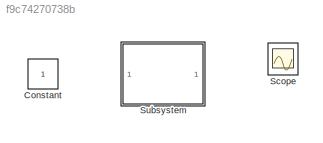
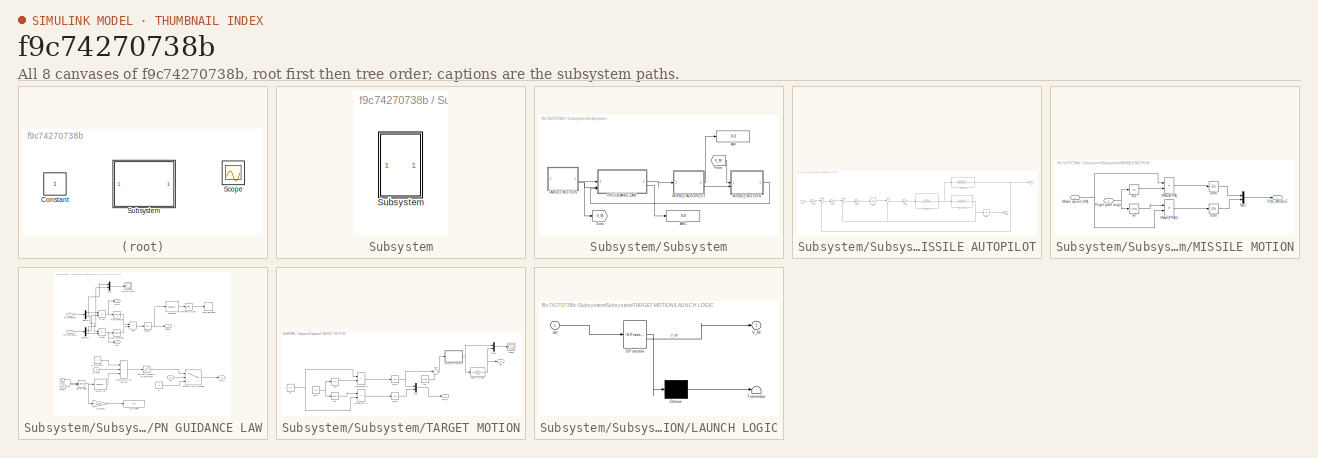
[diagram: thumbnail index - all 8 canvases of the model, root first then tree order]
MODEL slx_f9c74270738b
KIND model
CONFIG AbsTol = auto
CONFIG EnableMultiTasking = off
CONFIG FixedStep = 0.01
CONFIG MaxStep = auto
CONFIG MinStep = auto
CONFIG RelTol = 1e-3
CONFIG SampleTimeConstraint = Unconstrained
CONFIG SolverName = ode4
CONFIG StartTime = 0.0
CONFIG StopTime = 45
BLOCK [Constant] Constant
BLOCK [Scope] Scope
  Floating = off
  NumInputPorts = 1
  ScopeSpecificationString = Simulink.scopes.TimeScopeBlockCfg('CurrentConfiguration', extmgr.ConfigurationSet(extmgr.Configuration('Core','General UI',true),extmgr.Configuration('Core','Source UI',true),extmgr.Configuration('Sources','WiredSimulink',true),extmgr.Configuration('Visuals','Time Domain',true,'SerializedDisplays',{struct('MinYLimReal','-1.00000','MaxYLimReal','1.00000','YLabelReal','','MinYLimMag','0.00000','MaxY...<+1396ch>
BLOCK [SubSystem] Subsystem
BLOCK [SubSystem] Subsystem/Subsystem
BLOCK [Display] Subsystem/Subsystem/AM
  Decimation = 1
  Format = bank
BLOCK [Display] Subsystem/Subsystem/AM1
  Decimation = 1
  Format = bank
BLOCK [From] Subsystem/Subsystem/From
  GotoTag = V_M
BLOCK [Goto] Subsystem/Subsystem/Goto
  GotoTag = V_M
BLOCK [SubSystem] Subsystem/Subsystem/MISSILE AUTOPILOT
BLOCK [Outport] Subsystem/Subsystem/MISSILE AUTOPILOT/AM
BLOCK [Inport] Subsystem/Subsystem/MISSILE AUTOPILOT/AM_c
BLOCK [Gain] Subsystem/Subsystem/MISSILE AUTOPILOT/Gain
  Gain = Kr
BLOCK [Gain] Subsystem/Subsystem/MISSILE AUTOPILOT/Gain1
  Gain = Ki
BLOCK [Gain] Subsystem/Subsystem/MISSILE AUTOPILOT/Gain2
  Gain = Ka
BLOCK [Gain] Subsystem/Subsystem/MISSILE AUTOPILOT/Gain3
  Gain = Kdc
BLOCK [Integrator] Subsystem/Subsystem/MISSILE AUTOPILOT/Ki//S
BLOCK [Integrator] Subsystem/Subsystem/MISSILE AUTOPILOT/Ki//S1
  InitialCondition = l_MO
BLOCK [Sum] Subsystem/Subsystem/MISSILE AUTOPILOT/Sum
  Inputs = |+-
BLOCK [Sum] Subsystem/Subsystem/MISSILE AUTOPILOT/Sum1
  Inputs = |+-
BLOCK [Sum] Subsystem/Subsystem/MISSILE AUTOPILOT/Sum2
  Inputs = |+-
BLOCK [Outport] Subsystem/Subsystem/MISSILE AUTOPILOT/Theta
  Port = 2
BLOCK [TransferFcn] Subsystem/Subsystem/MISSILE AUTOPILOT/Transfer Fcn
  Denominator = [1 1.12 87.176]
  Numerator = [0.2038 0 -239.76]
BLOCK [TransferFcn] Subsystem/Subsystem/MISSILE AUTOPILOT/Transfer Fcn1
  Denominator = [1 210 22500]
  Numerator = [22500]
BLOCK [TransferFcn] Subsystem/Subsystem/MISSILE AUTOPILOT/Transfer Fcn2
  Denominator = [1 1.12 87.176]
  Numerator = [-131 -131]
BLOCK [SubSystem] Subsystem/Subsystem/MISSILE MOTION
BLOCK [Inport] Subsystem/Subsystem/MISSILE MOTION/Flight path angle
  Port = 2
BLOCK [Inport] Subsystem/Subsystem/MISSILE MOTION/Missile speed (VM)
BLOCK [Mux] Subsystem/Subsystem/MISSILE MOTION/Mux
  DisplayOption = bar
  Inputs = 2
BLOCK [Outport] Subsystem/Subsystem/MISSILE MOTION/POS_MISSILE
BLOCK [Product] Subsystem/Subsystem/MISSILE MOTION/VMcos(FPA)
BLOCK [Product] Subsystem/Subsystem/MISSILE MOTION/VMsin(FPA)1
BLOCK [Trigonometry] Subsystem/Subsystem/MISSILE MOTION/cos
  Operator = cos
BLOCK [Integrator] Subsystem/Subsystem/MISSILE MOTION/dx//dt
  InitialCondition = X_MO
BLOCK [Integrator] Subsystem/Subsystem/MISSILE MOTION/dz//dt
  InitialCondition = Z_MO
BLOCK [Trigonometry] Subsystem/Subsystem/MISSILE MOTION/sin
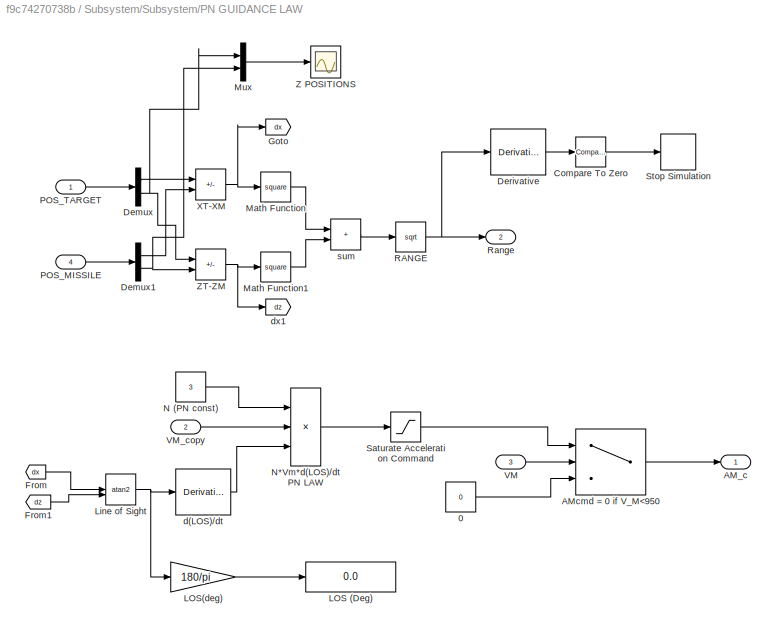
BLOCK [SubSystem] Subsystem/Subsystem/PN GUIDANCE LAW
BLOCK [Constant] Subsystem/Subsystem/PN GUIDANCE LAW/0
  Value = 0
BLOCK [Outport] Subsystem/Subsystem/PN GUIDANCE LAW/AM_c
BLOCK [Switch] Subsystem/Subsystem/PN GUIDANCE LAW/AMcmd = 0 if V_M<950
  Criteria = u2 > Threshold
  InputSameDT = off
  SaturateOnIntegerOverflow = off
  Threshold = 950
BLOCK [Reference] Subsystem/Subsystem/PN GUIDANCE LAW/Compare To Zero  REF=simulink/Logic and Bit
Operations/Compare
To Zero
  SourceBlock = simulink/Logic and Bit\nOperations/Compare\nTo Zero
  SourceType = Compare To Zero
BLOCK [Demux] Subsystem/Subsystem/PN GUIDANCE LAW/Demux
  Outputs = 2
BLOCK [Demux] Subsystem/Subsystem/PN GUIDANCE LAW/Demux1
  Outputs = 2
BLOCK [Derivative] Subsystem/Subsystem/PN GUIDANCE LAW/Derivative
BLOCK [From] Subsystem/Subsystem/PN GUIDANCE LAW/From
  GotoTag = dx
BLOCK [From] Subsystem/Subsystem/PN GUIDANCE LAW/From1
  GotoTag = dz
BLOCK [Goto] Subsystem/Subsystem/PN GUIDANCE LAW/Goto
  GotoTag = dx
BLOCK [Display] Subsystem/Subsystem/PN GUIDANCE LAW/LOS (Deg)
  Decimation = 1
BLOCK [Gain] Subsystem/Subsystem/PN GUIDANCE LAW/LOS(deg)
  Gain = 180/pi
BLOCK [Trigonometry] Subsystem/Subsystem/PN GUIDANCE LAW/Line of Sight
  Operator = atan2
BLOCK [Math] Subsystem/Subsystem/PN GUIDANCE LAW/Math Function
  Operator = square
BLOCK [Math] Subsystem/Subsystem/PN GUIDANCE LAW/Math Function1
  Operator = square
BLOCK [Mux] Subsystem/Subsystem/PN GUIDANCE LAW/Mux
  DisplayOption = bar
  Inputs = 2
BLOCK [Constant] Subsystem/Subsystem/PN GUIDANCE LAW/N (PN const)
  Value = 3
BLOCK [Product] Subsystem/Subsystem/PN GUIDANCE LAW/N*Vm*d(LOS)//dt PN LAW
  Inputs = 3
BLOCK [Inport] Subsystem/Subsystem/PN GUIDANCE LAW/POS_MISSILE
  Port = 4
BLOCK [Inport] Subsystem/Subsystem/PN GUIDANCE LAW/POS_TARGET
BLOCK [Sqrt] Subsystem/Subsystem/PN GUIDANCE LAW/RANGE
BLOCK [Outport] Subsystem/Subsystem/PN GUIDANCE LAW/Range
  Port = 2
BLOCK [Saturate] Subsystem/Subsystem/PN GUIDANCE LAW/Saturate Acceleration Command
  LowerLimit = -0.10
  UpperLimit = 0
BLOCK [Stop] Subsystem/Subsystem/PN GUIDANCE LAW/Stop Simulation
BLOCK [Inport] Subsystem/Subsystem/PN GUIDANCE LAW/VM
  Port = 3
BLOCK [Inport] Subsystem/Subsystem/PN GUIDANCE LAW/VM_copy
  Port = 2
BLOCK [Sum] Subsystem/Subsystem/PN GUIDANCE LAW/XT-XM
  IconShape = rectangular
  Inputs = +-
BLOCK [Scope] Subsystem/Subsystem/PN GUIDANCE LAW/Z POSITIONS
  Floating = off
  NumInputPorts = 1
  ScopeSpecificationString = Simulink.scopes.TimeScopeBlockCfg('CurrentConfiguration', extmgr.ConfigurationSet(extmgr.Configuration('Core','General UI',true),extmgr.Configuration('Core','Source UI',true),extmgr.Configuration('Sources','WiredSimulink',true,'DataLoggingVariableName','ScopeData2'),extmgr.Configuration('Visuals','Time Domain',true,'SerializedDisplays',{struct('MinYLimReal','-2500.00000','MaxYLimReal','22500.00000...<+1507ch>
BLOCK [Sum] Subsystem/Subsystem/PN GUIDANCE LAW/ZT-ZM
  IconShape = rectangular
  Inputs = +-
BLOCK [Derivative] Subsystem/Subsystem/PN GUIDANCE LAW/d(LOS)//dt
BLOCK [Goto] Subsystem/Subsystem/PN GUIDANCE LAW/dx1
  GotoTag = dz
BLOCK [Sum] Subsystem/Subsystem/PN GUIDANCE LAW/sum
  IconShape = rectangular
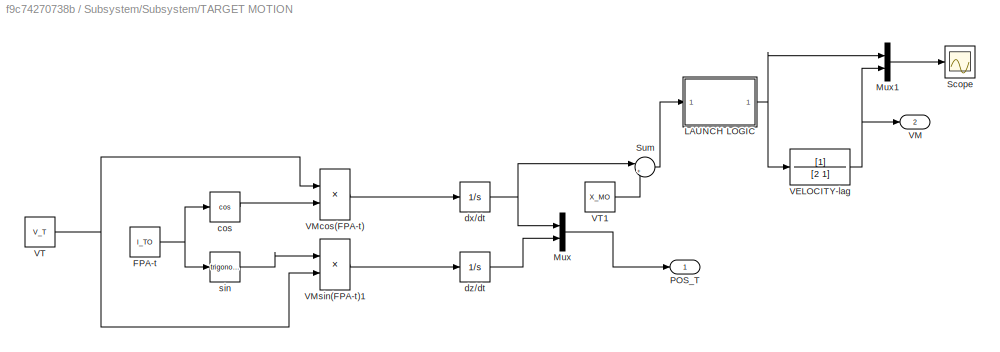
BLOCK [SubSystem] Subsystem/Subsystem/TARGET MOTION
BLOCK [Constant] Subsystem/Subsystem/TARGET MOTION/FPA-t
  Value = l_TO
BLOCK [SubSystem] Subsystem/Subsystem/TARGET MOTION/LAUNCH LOGIC
  ErrorFcn = Stateflow.Translate.translate
  LibrarySourceBlock = simulink/User-Defined\nFunctions/MATLAB Function
  PermitHierarchicalResolution = ExplicitOnly
  SFBlockType = MATLAB Function
  TreatAsAtomicUnit = on
BLOCK [Demux] Subsystem/Subsystem/TARGET MOTION/LAUNCH LOGIC/ Demux 
  Outputs = 1
BLOCK [S-Function] Subsystem/Subsystem/TARGET MOTION/LAUNCH LOGIC/ SFunction 
  EnableBusSupport = on
  FunctionName = sf_sfun
  PortCounts = [1 2]
  SFcnIsStateOwnerBlock = off
  SFunctionDeploymentMode = off
  Tag = Stateflow S-Function 2
BLOCK [Terminator] Subsystem/Subsystem/TARGET MOTION/LAUNCH LOGIC/ Terminator 
BLOCK [Outport] Subsystem/Subsystem/TARGET MOTION/LAUNCH LOGIC/V_M
BLOCK [Inport] Subsystem/Subsystem/TARGET MOTION/LAUNCH LOGIC/del
BLOCK [Mux] Subsystem/Subsystem/TARGET MOTION/Mux
  DisplayOption = bar
  Inputs = 2
BLOCK [Mux] Subsystem/Subsystem/TARGET MOTION/Mux1
  DisplayOption = bar
  Inputs = 2
BLOCK [Outport] Subsystem/Subsystem/TARGET MOTION/POS_T
BLOCK [Scope] Subsystem/Subsystem/TARGET MOTION/Scope
  Floating = off
  NumInputPorts = 1
  ScopeSpecificationString = Simulink.scopes.TimeScopeBlockCfg('CurrentConfiguration', extmgr.ConfigurationSet(extmgr.Configuration('Core','General UI',true),extmgr.Configuration('Core','Source UI',true),extmgr.Configuration('Sources','WiredSimulink',true,'DataLoggingVariableName','ScopeData1'),extmgr.Configuration('Visuals','Time Domain',true,'SerializedDisplays',{struct('MinYLimReal','-127.625','MaxYLimReal','1148.625','YLa...<+1419ch>
BLOCK [Sum] Subsystem/Subsystem/TARGET MOTION/Sum
  Inputs = |+-
BLOCK [TransferFcn] Subsystem/Subsystem/TARGET MOTION/VELOCITY-lag
  Denominator = [2 1]
BLOCK [Outport] Subsystem/Subsystem/TARGET MOTION/VM
  Port = 2
BLOCK [Product] Subsystem/Subsystem/TARGET MOTION/VMcos(FPA-t)
BLOCK [Product] Subsystem/Subsystem/TARGET MOTION/VMsin(FPA-t)1
BLOCK [Constant] Subsystem/Subsystem/TARGET MOTION/VT
  Value = V_T
BLOCK [Constant] Subsystem/Subsystem/TARGET MOTION/VT1
  Value = X_MO
BLOCK [Trigonometry] Subsystem/Subsystem/TARGET MOTION/cos
  Operator = cos
BLOCK [Integrator] Subsystem/Subsystem/TARGET MOTION/dx//dt
  InitialCondition = X_TO
BLOCK [Integrator] Subsystem/Subsystem/TARGET MOTION/dz//dt
  InitialCondition = Z_TO
BLOCK [Trigonometry] Subsystem/Subsystem/TARGET MOTION/sin
LINE Subsystem/Subsystem/From:1 -> Subsystem/Subsystem/MISSILE MOTION:1
LINE Subsystem/Subsystem/MISSILE AUTOPILOT/AM_c:1 -> Subsystem/Subsystem/MISSILE AUTOPILOT/Gain3:1
LINE Subsystem/Subsystem/MISSILE AUTOPILOT/Gain1:1 -> Subsystem/Subsystem/MISSILE AUTOPILOT/Ki//S:1
LINE Subsystem/Subsystem/MISSILE AUTOPILOT/Gain2:1 -> Subsystem/Subsystem/MISSILE AUTOPILOT/Sum1:1
LINE Subsystem/Subsystem/MISSILE AUTOPILOT/Gain3:1 -> Subsystem/Subsystem/MISSILE AUTOPILOT/Sum2:1
LINE Subsystem/Subsystem/MISSILE AUTOPILOT/Gain:1 -> Subsystem/Subsystem/MISSILE AUTOPILOT/Transfer Fcn1:1
LINE Subsystem/Subsystem/MISSILE AUTOPILOT/Ki//S1:1 -> Subsystem/Subsystem/MISSILE AUTOPILOT/Theta:1
LINE Subsystem/Subsystem/MISSILE AUTOPILOT/Ki//S:1 -> Subsystem/Subsystem/MISSILE AUTOPILOT/Sum:1
LINE Subsystem/Subsystem/MISSILE AUTOPILOT/Sum1:1 -> Subsystem/Subsystem/MISSILE AUTOPILOT/Gain1:1
LINE Subsystem/Subsystem/MISSILE AUTOPILOT/Sum2:1 -> Subsystem/Subsystem/MISSILE AUTOPILOT/Gain2:1
LINE Subsystem/Subsystem/MISSILE AUTOPILOT/Sum:1 -> Subsystem/Subsystem/MISSILE AUTOPILOT/Gain:1
NET Subsystem/Subsystem/MISSILE AUTOPILOT/Transfer Fcn1:1 -> Subsystem/Subsystem/MISSILE AUTOPILOT/Transfer Fcn2:1, Subsystem/Subsystem/MISSILE AUTOPILOT/Transfer Fcn:1
NET Subsystem/Subsystem/MISSILE AUTOPILOT/Transfer Fcn2:1 -> Subsystem/Subsystem/MISSILE AUTOPILOT/Ki//S1:1, Subsystem/Subsystem/MISSILE AUTOPILOT/Sum1:2, Subsystem/Subsystem/MISSILE AUTOPILOT/Sum:2
NET Subsystem/Subsystem/MISSILE AUTOPILOT/Transfer Fcn:1 -> Subsystem/Subsystem/MISSILE AUTOPILOT/AM:1, Subsystem/Subsystem/MISSILE AUTOPILOT/Sum2:2
LINE Subsystem/Subsystem/MISSILE AUTOPILOT:1 -> Subsystem/Subsystem/AM:1
LINE Subsystem/Subsystem/MISSILE AUTOPILOT:2 -> Subsystem/Subsystem/MISSILE MOTION:2
NET Subsystem/Subsystem/MISSILE MOTION/Flight path angle:1 -> Subsystem/Subsystem/MISSILE MOTION/cos:1, Subsystem/Subsystem/MISSILE MOTION/sin:1
NET Subsystem/Subsystem/MISSILE MOTION/Missile speed (VM):1 -> Subsystem/Subsystem/MISSILE MOTION/VMcos(FPA):1, Subsystem/Subsystem/MISSILE MOTION/VMsin(FPA)1:2
LINE Subsystem/Subsystem/MISSILE MOTION/Mux:1 -> Subsystem/Subsystem/MISSILE MOTION/POS_MISSILE:1
LINE Subsystem/Subsystem/MISSILE MOTION/VMcos(FPA):1 -> Subsystem/Subsystem/MISSILE MOTION/dx//dt:1
LINE Subsystem/Subsystem/MISSILE MOTION/VMsin(FPA)1:1 -> Subsystem/Subsystem/MISSILE MOTION/dz//dt:1
LINE Subsystem/Subsystem/MISSILE MOTION/cos:1 -> Subsystem/Subsystem/MISSILE MOTION/VMcos(FPA):2
LINE Subsystem/Subsystem/MISSILE MOTION/dx//dt:1 -> Subsystem/Subsystem/MISSILE MOTION/Mux:1
LINE Subsystem/Subsystem/MISSILE MOTION/dz//dt:1 -> Subsystem/Subsystem/MISSILE MOTION/Mux:2
LINE Subsystem/Subsystem/MISSILE MOTION/sin:1 -> Subsystem/Subsystem/MISSILE MOTION/VMsin(FPA)1:1
LINE Subsystem/Subsystem/MISSILE MOTION:1 -> Subsystem/Subsystem/PN GUIDANCE LAW:4
LINE Subsystem/Subsystem/PN GUIDANCE LAW/0:1 -> Subsystem/Subsystem/PN GUIDANCE LAW/AMcmd = 0 if V_M<950:3
LINE Subsystem/Subsystem/PN GUIDANCE LAW/AMcmd = 0 if V_M<950:1 -> Subsystem/Subsystem/PN GUIDANCE LAW/AM_c:1
LINE Subsystem/Subsystem/PN GUIDANCE LAW/Compare To Zero:1 -> Subsystem/Subsystem/PN GUIDANCE LAW/Stop Simulation:1
LINE Subsystem/Subsystem/PN GUIDANCE LAW/Demux1:1 -> Subsystem/Subsystem/PN GUIDANCE LAW/XT-XM:2
NET Subsystem/Subsystem/PN GUIDANCE LAW/Demux1:2 -> Subsystem/Subsystem/PN GUIDANCE LAW/Mux:2, Subsystem/Subsystem/PN GUIDANCE LAW/ZT-ZM:2
LINE Subsystem/Subsystem/PN GUIDANCE LAW/Demux:1 -> Subsystem/Subsystem/PN GUIDANCE LAW/XT-XM:1
NET Subsystem/Subsystem/PN GUIDANCE LAW/Demux:2 -> Subsystem/Subsystem/PN GUIDANCE LAW/Mux:1, Subsystem/Subsystem/PN GUIDANCE LAW/ZT-ZM:1
LINE Subsystem/Subsystem/PN GUIDANCE LAW/Derivative:1 -> Subsystem/Subsystem/PN GUIDANCE LAW/Compare To Zero:1
LINE Subsystem/Subsystem/PN GUIDANCE LAW/From1:1 -> Subsystem/Subsystem/PN GUIDANCE LAW/Line of Sight:2
LINE Subsystem/Subsystem/PN GUIDANCE LAW/From:1 -> Subsystem/Subsystem/PN GUIDANCE LAW/Line of Sight:1
LINE Subsystem/Subsystem/PN GUIDANCE LAW/LOS(deg):1 -> Subsystem/Subsystem/PN GUIDANCE LAW/LOS (Deg):1
NET Subsystem/Subsystem/PN GUIDANCE LAW/Line of Sight:1 -> Subsystem/Subsystem/PN GUIDANCE LAW/LOS(deg):1, Subsystem/Subsystem/PN GUIDANCE LAW/d(LOS)//dt:1
LINE Subsystem/Subsystem/PN GUIDANCE LAW/Math Function1:1 -> Subsystem/Subsystem/PN GUIDANCE LAW/sum:2
LINE Subsystem/Subsystem/PN GUIDANCE LAW/Math Function:1 -> Subsystem/Subsystem/PN GUIDANCE LAW/sum:1
LINE Subsystem/Subsystem/PN GUIDANCE LAW/Mux:1 -> Subsystem/Subsystem/PN GUIDANCE LAW/Z POSITIONS:1
LINE Subsystem/Subsystem/PN GUIDANCE LAW/N (PN const):1 -> Subsystem/Subsystem/PN GUIDANCE LAW/N*Vm*d(LOS)//dt PN LAW:1
LINE Subsystem/Subsystem/PN GUIDANCE LAW/N*Vm*d(LOS)//dt PN LAW:1 -> Subsystem/Subsystem/PN GUIDANCE LAW/Saturate Acceleration Command:1
LINE Subsystem/Subsystem/PN GUIDANCE LAW/POS_MISSILE:1 -> Subsystem/Subsystem/PN GUIDANCE LAW/Demux1:1
LINE Subsystem/Subsystem/PN GUIDANCE LAW/POS_TARGET:1 -> Subsystem/Subsystem/PN GUIDANCE LAW/Demux:1
NET Subsystem/Subsystem/PN GUIDANCE LAW/RANGE:1 -> Subsystem/Subsystem/PN GUIDANCE LAW/Derivative:1, Subsystem/Subsystem/PN GUIDANCE LAW/Range:1
LINE Subsystem/Subsystem/PN GUIDANCE LAW/Saturate Acceleration Command:1 -> Subsystem/Subsystem/PN GUIDANCE LAW/AMcmd = 0 if V_M<950:1
LINE Subsystem/Subsystem/PN GUIDANCE LAW/VM:1 -> Subsystem/Subsystem/PN GUIDANCE LAW/AMcmd = 0 if V_M<950:2
LINE Subsystem/Subsystem/PN GUIDANCE LAW/VM_copy:1 -> Subsystem/Subsystem/PN GUIDANCE LAW/N*Vm*d(LOS)//dt PN LAW:2
NET Subsystem/Subsystem/PN GUIDANCE LAW/XT-XM:1 -> Subsystem/Subsystem/PN GUIDANCE LAW/Goto:1, Subsystem/Subsystem/PN GUIDANCE LAW/Math Function:1
NET Subsystem/Subsystem/PN GUIDANCE LAW/ZT-ZM:1 -> Subsystem/Subsystem/PN GUIDANCE LAW/Math Function1:1, Subsystem/Subsystem/PN GUIDANCE LAW/dx1:1
LINE Subsystem/Subsystem/PN GUIDANCE LAW/d(LOS)//dt:1 -> Subsystem/Subsystem/PN GUIDANCE LAW/N*Vm*d(LOS)//dt PN LAW:3
LINE Subsystem/Subsystem/PN GUIDANCE LAW/sum:1 -> Subsystem/Subsystem/PN GUIDANCE LAW/RANGE:1
LINE Subsystem/Subsystem/PN GUIDANCE LAW:1 -> Subsystem/Subsystem/MISSILE AUTOPILOT:1
LINE Subsystem/Subsystem/PN GUIDANCE LAW:2 -> Subsystem/Subsystem/AM1:1
NET Subsystem/Subsystem/TARGET MOTION/FPA-t:1 -> Subsystem/Subsystem/TARGET MOTION/cos:1, Subsystem/Subsystem/TARGET MOTION/sin:1
NET Subsystem/Subsystem/TARGET MOTION/LAUNCH LOGIC:1 -> Subsystem/Subsystem/TARGET MOTION/Mux1:1, Subsystem/Subsystem/TARGET MOTION/VELOCITY-lag:1
LINE Subsystem/Subsystem/TARGET MOTION/Mux1:1 -> Subsystem/Subsystem/TARGET MOTION/Scope:1
LINE Subsystem/Subsystem/TARGET MOTION/Mux:1 -> Subsystem/Subsystem/TARGET MOTION/POS_T:1
LINE Subsystem/Subsystem/TARGET MOTION/Sum:1 -> Subsystem/Subsystem/TARGET MOTION/LAUNCH LOGIC:1
NET Subsystem/Subsystem/TARGET MOTION/VELOCITY-lag:1 -> Subsystem/Subsystem/TARGET MOTION/Mux1:2, Subsystem/Subsystem/TARGET MOTION/VM:1
LINE Subsystem/Subsystem/TARGET MOTION/VMcos(FPA-t):1 -> Subsystem/Subsystem/TARGET MOTION/dx//dt:1
LINE Subsystem/Subsystem/TARGET MOTION/VMsin(FPA-t)1:1 -> Subsystem/Subsystem/TARGET MOTION/dz//dt:1
LINE Subsystem/Subsystem/TARGET MOTION/VT1:1 -> Subsystem/Subsystem/TARGET MOTION/Sum:2
NET Subsystem/Subsystem/TARGET MOTION/VT:1 -> Subsystem/Subsystem/TARGET MOTION/VMcos(FPA-t):1, Subsystem/Subsystem/TARGET MOTION/VMsin(FPA-t)1:2
LINE Subsystem/Subsystem/TARGET MOTION/cos:1 -> Subsystem/Subsystem/TARGET MOTION/VMcos(FPA-t):2
NET Subsystem/Subsystem/TARGET MOTION/dx//dt:1 -> Subsystem/Subsystem/TARGET MOTION/Mux:1, Subsystem/Subsystem/TARGET MOTION/Sum:1
LINE Subsystem/Subsystem/TARGET MOTION/dz//dt:1 -> Subsystem/Subsystem/TARGET MOTION/Mux:2
LINE Subsystem/Subsystem/TARGET MOTION/sin:1 -> Subsystem/Subsystem/TARGET MOTION/VMsin(FPA-t)1:1
LINE Subsystem/Subsystem/TARGET MOTION:1 -> Subsystem/Subsystem/PN GUIDANCE LAW:1
NET Subsystem/Subsystem/TARGET MOTION:2 -> Subsystem/Subsystem/Goto:1, Subsystem/Subsystem/PN GUIDANCE LAW:3
note: NET lines group one-source signal fan-out (src -> all destinations, sorted); 1:1 wires keep LINE
CHART Subsystem/Subsystem/TARGET MOTION/LAUNCH LOGIC states=1 transitions=1
  STATE_LABEL 'eML_blk_kernel()'
  STATE_LABEL 'SCRIPT:\nfunction V_M = fcn(del)\n%#codegen\npersistent f\npersistent Vel\n\nif isempty(f) \n    f = 0;\nend\nif isempty(Vel)\n    Vel = 0;\nend\nif f == 0 && del > -200\n    f = 1;\n    Vel = 1021; %missile speed\nend\n\nV_M = Vel;'
CHART  states=0 transitions=0
